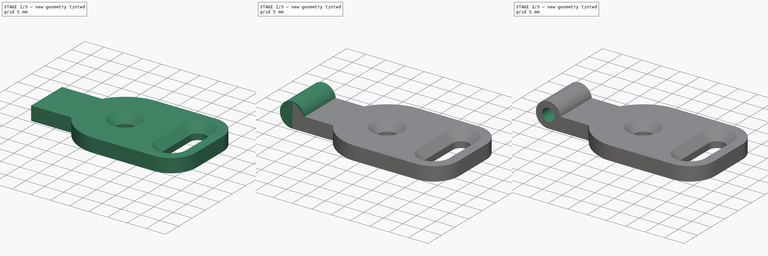
[diagram: build sequence overview — one tinted view per stage of 3, left to right]
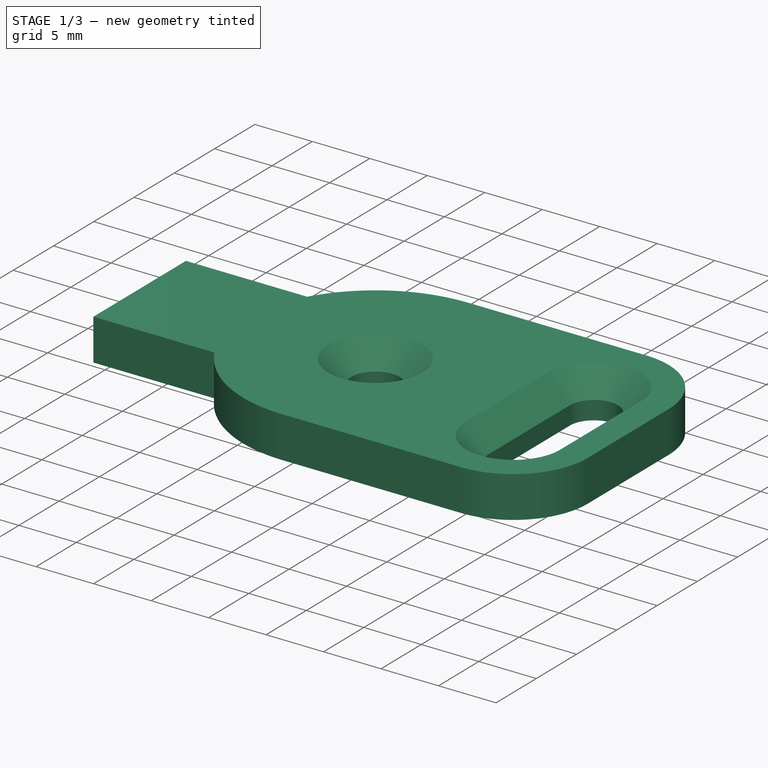
[diagram: stage 1 of 3 — iso view after this stage's code; geometry added in this stage tinted green]
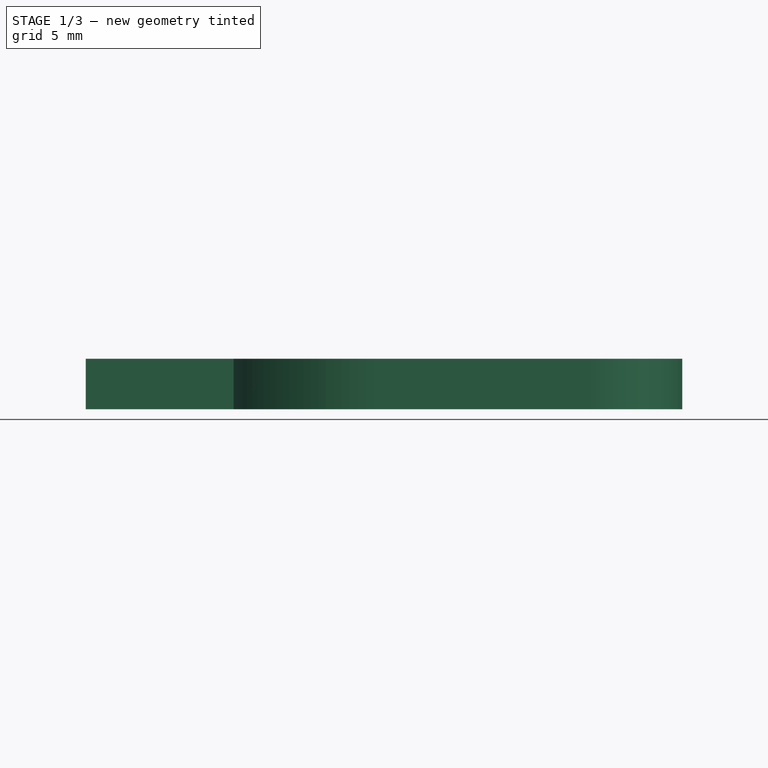
[diagram: stage 1 of 3 — front view after this stage's code; geometry added in this stage tinted green]
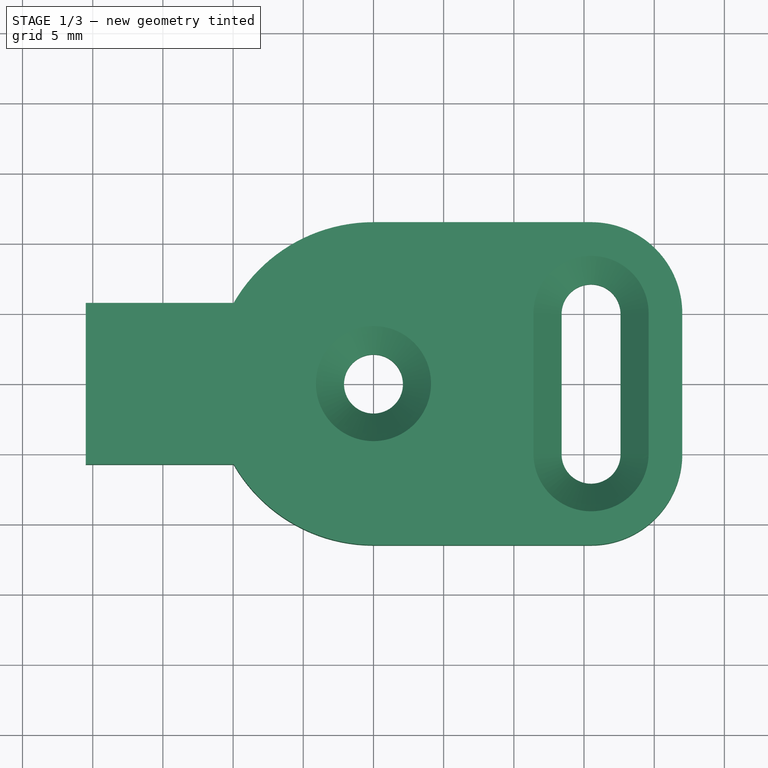
[diagram: stage 1 of 3 — top view after this stage's code; geometry added in this stage tinted green]
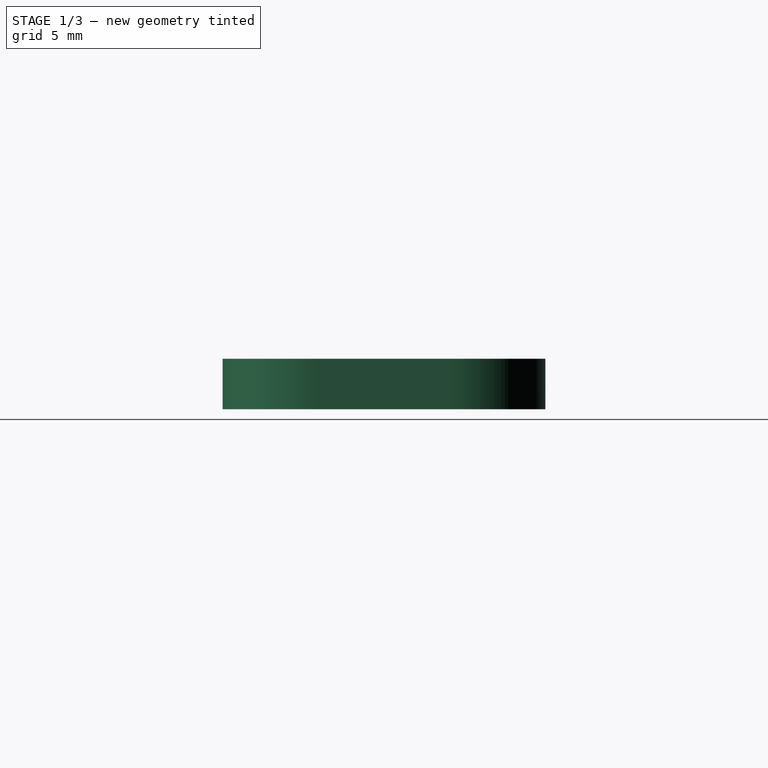
[diagram: stage 1 of 3 — right view after this stage's code; geometry added in this stage tinted green]
FCSTD DOCUMENT  (FreeCAD 0.20R29410 (Git))
Label: Zsaner
License: All rights reserved
LicenseURL: http://en.wikipedia.org/wiki/All_rights_reserved
objects: Sketcher::SketchObject×3, PartDesign::Pad×2, PartDesign::Chamfer×1, PartDesign::Pocket×1, PartDesign::Fillet×1, PartDesign::Body×1
note: 14 computed .brp shape members not serialized (recipe doc carries the construction recipe); baked Part::Feature solids carry a one-line shape summary decoded from their .brp

FEATURE [Sketcher::SketchObject] Sketch
  FullyConstrained = true
  MapMode = 5
  Support = -> [XY_Plane]
  sketch-geometry (18):
    g0: Circle CenterX=9.746e-13 CenterY=2.216e-13 CenterZ=0 NormalX=0 NormalY=0 NormalZ=1 AngleXU=0 Radius=2.1
    g1: ArcOfCircle CenterX=15.5 CenterY=5 CenterZ=0 NormalX=0 NormalY=0 NormalZ=1 AngleXU=0 Radius=2.1 StartAngle=-2.656e-13 EndAngle=3.14159
    g2: ArcOfCircle CenterX=15.5 CenterY=-5 CenterZ=0 NormalX=0 NormalY=0 NormalZ=1 AngleXU=0 Radius=2.1 StartAngle=3.14159 EndAngle=6.28319
    g3: LineSegment StartX=13.4 StartY=5 StartZ=0 EndX=13.4 EndY=-5 EndZ=0
    g4: LineSegment StartX=17.6 StartY=-5 StartZ=0 EndX=17.6 EndY=5 EndZ=0
    g5: LineSegment StartX=9.746e-13 StartY=2.216e-13 StartZ=0 EndX=15.5 EndY=2.216e-13 EndZ=0
    g6: LineSegment StartX=-20.5 StartY=5.75 StartZ=0 EndX=-20.5 EndY=-5.75 EndZ=0
    g7: LineSegment StartX=-20.5 StartY=-5.75 StartZ=0 EndX=-9.95929 EndY=-5.75 EndZ=0
    g8: LineSegment StartX=1.1155e-12 StartY=-11.5 StartZ=0 EndX=15.5 EndY=-11.5 EndZ=0
    g9: LineSegment StartX=22 StartY=-5 StartZ=0 EndX=22 EndY=5 EndZ=0
    g10: LineSegment StartX=15.5 StartY=11.5 StartZ=0 EndX=3.50948e-10 EndY=11.5 EndZ=0
    g11: LineSegment StartX=-9.95929 StartY=5.75 StartZ=0 EndX=-20.5 EndY=5.75 EndZ=0
    g12: LineSegment StartX=15.5 StartY=11.5 StartZ=0 EndX=15.5 EndY=-11.5 EndZ=0
    g13: ArcOfCircle CenterX=15.5 CenterY=5 CenterZ=0 NormalX=0 NormalY=0 NormalZ=1 AngleXU=0 Radius=6.5 StartAngle=-2.7e-15 EndAngle=1.5708
    g14: ArcOfCircle CenterX=15.5 CenterY=-5 CenterZ=0 NormalX=0 NormalY=0 NormalZ=1 AngleXU=0 Radius=6.5 StartAngle=4.71239 EndAngle=6.28319
    g15: LineSegment StartX=3.50948e-10 StartY=11.5 StartZ=0 EndX=1.1155e-12 EndY=-11.5 EndZ=0
    g16: ArcOfCircle CenterX=9.746e-13 CenterY=2.216e-13 CenterZ=0 NormalX=0 NormalY=0 NormalZ=1 AngleXU=0 Radius=11.5 StartAngle=1.5708 EndAngle=2.61799
    g17: ArcOfCircle CenterX=9.746e-13 CenterY=2.216e-13 CenterZ=0 NormalX=0 NormalY=0 NormalZ=1 AngleXU=0 Radius=11.5 StartAngle=3.66519 EndAngle=4.71239
  constraints (43):
    c: Radius(g0) = 2.1
    c: Tangent(g1,g3) = -1.5708
    c: Tangent(g3,g2) = -1.5708
    c: Tangent(g2,g4) = -1.5708
    c: Tangent(g4,g1) = -1.5708
    c: Equal(g1,g2)
    c: Vertical(g3)
    c: Equal(g1,g0)
    c: Horizontal(g5)
    c: Symmetric(g1,g2,g5)
    c: DistanceX(g5,g5) = 15.5
    c: Coincident(g6,g7)
    c: Horizontal(g7)
    c: Horizontal(g8)
    c: Vertical(g9)
    c: Coincident(g11,g6)
    c: Horizontal(g11)
    c: Coincident(g5,g0)
    c: Equal(g11,g7)
    c: Symmetric(g6,g6,g5)
    c: Coincident(g12,g8)
    c: Vertical(g12)
    c: PointOnObject(g5,g12)
    c: Coincident(g13,g1)
    c: Coincident(g13,g10)
    c: Coincident(g14,g2)
    c: Coincident(g14,g8)
    c: Tangent(g9,g14) = -1.5708
    c: Tangent(g9,g13) = -1.5708
    c: Coincident(g12,g10)
    c: DistanceY(g2,g1) = 10
    c: Coincident(g15,g10)
    c: Coincident(g8,g15)
    c: Coincident(g16,g0)
    c: Coincident(g16,g11)
    c: Coincident(g17,g0)
    c: Coincident(g17,g7)
    c: Tangent(g17,g8) = -1.5708
    c: Tangent(g16,g10) = -1.5708
    c: DistanceY(g8,g10) = 23
    c: DistanceY(g6,g6) = 11.5  'He'
    c: DistanceX(g6,g10) = 20.5
    c: Coincident(g0,g-1)  '__##__'
FEATURE [PartDesign::Pad] Pad
  Direction = (0,0,1)
  Length = 3.6
  Length2 = 10
  Profile = -> Sketch
  ReferenceAxis = -> Sketch [N_Axis]
  Type = 0
FEATURE [PartDesign::Chamfer] Chamfer
  Angle = 45
  Base = -> Pad [Edge45,Edge34]
  BaseFeature = -> Pad
  ChamferType = 0
  FlipDirection = false
  Size = 2
  Size2 = 1
  SupportTransform = false
  UseAllEdges = false
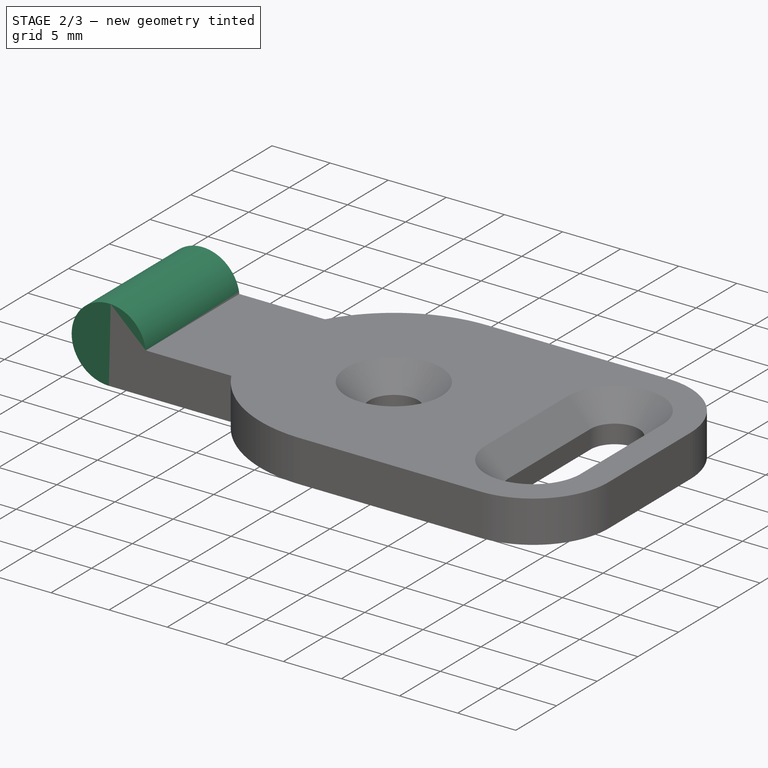
[diagram: stage 2 of 3 — iso view after this stage's code; geometry added in this stage tinted green]
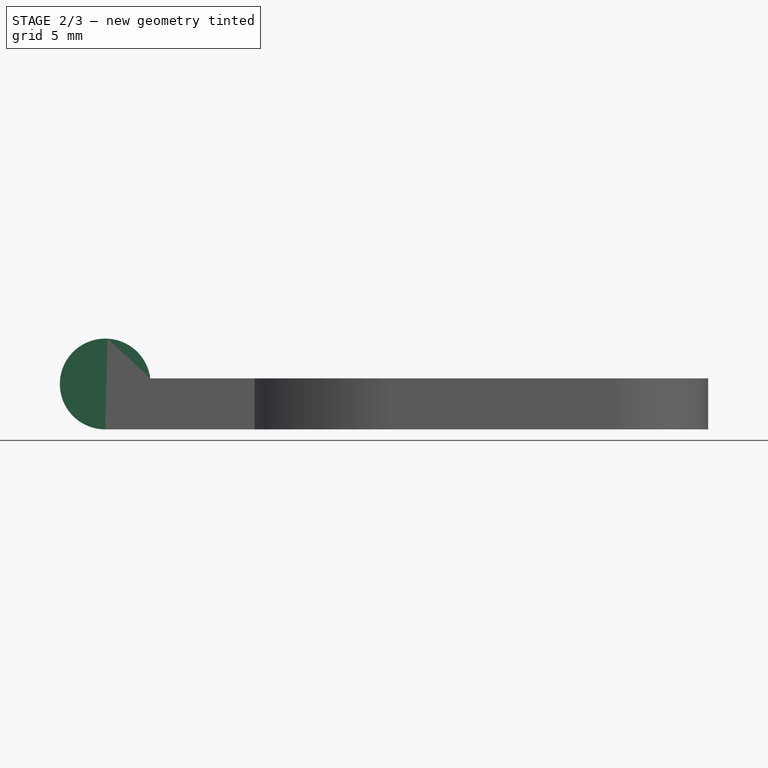
[diagram: stage 2 of 3 — front view after this stage's code; geometry added in this stage tinted green]
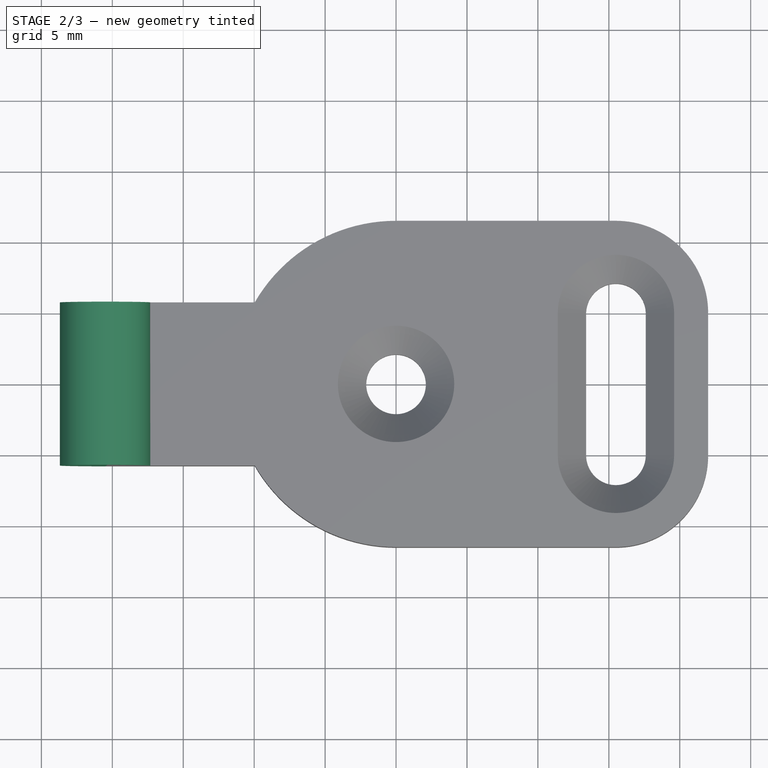
[diagram: stage 2 of 3 — top view after this stage's code; geometry added in this stage tinted green]
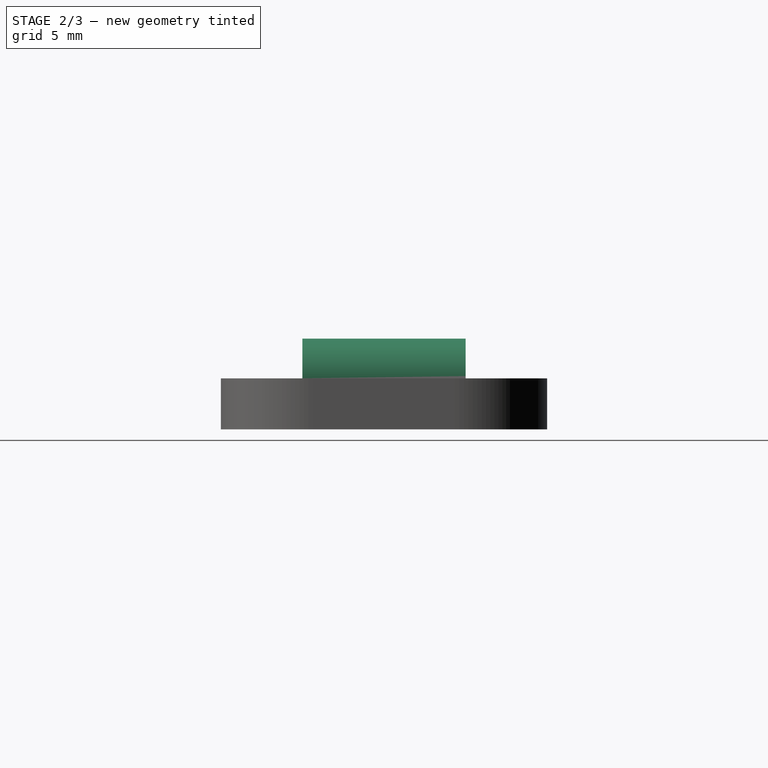
[diagram: stage 2 of 3 — right view after this stage's code; geometry added in this stage tinted green]
FEATURE [Sketcher::SketchObject] Sketch001
  ExternalGeometry = -> [Sketch]
  FullyConstrained = true
  MapMode = 5
  Placement = pos=(0,0,0) rot=(1,0,0;1.5708rad)
  Support = -> [XZ_Plane]
  sketch-geometry (2):
    g0: LineSegment StartX=-20.5 StartY=-2.43e-14 StartZ=0 EndX=-20.5 EndY=3.2 EndZ=0
    g1: Circle CenterX=-20.5 CenterY=3.2 CenterZ=0 NormalX=0 NormalY=0 NormalZ=1 AngleXU=0 Radius=3.2
  constraints (5):
    c: Coincident(g0,g-3)
    c: Vertical(g0)
    c: Coincident(g1,g0)
    c: PointOnObject(g0,g1)
    c: Radius(g1) = 3.2
FEATURE [PartDesign::Pad] Pad001
  BaseFeature = -> Chamfer
  Direction = (0,-1,2e-16)
  Length = 11.5
  Length2 = 10
  Midplane = true
  Profile = -> Sketch001
  ReferenceAxis = -> Sketch001 [N_Axis]
  Refine = true
  Type = 0
  expr: Length = <<Sketch>>.Constraints.He
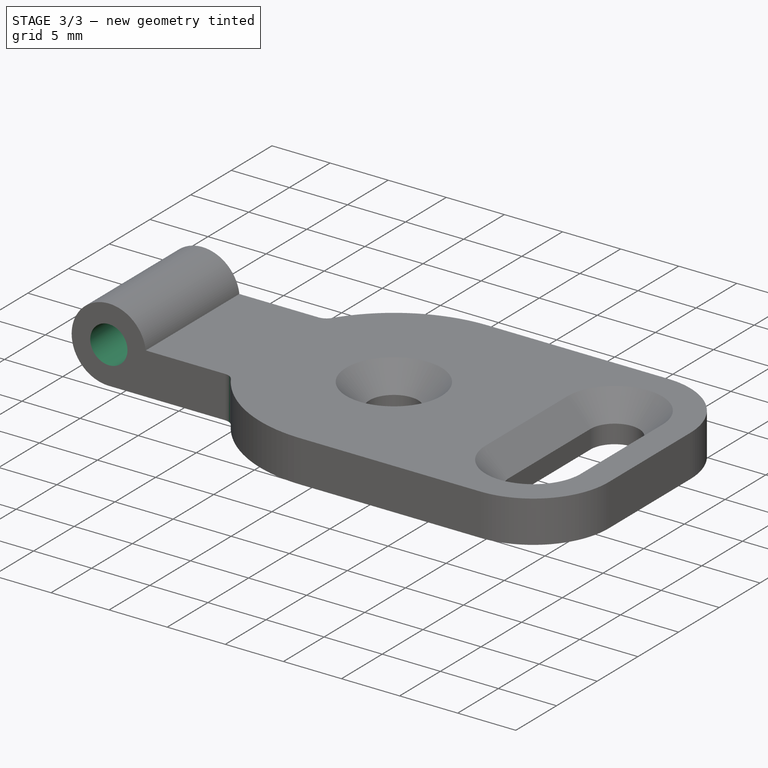
[diagram: stage 3 of 3 — iso view after this stage's code; geometry added in this stage tinted green]
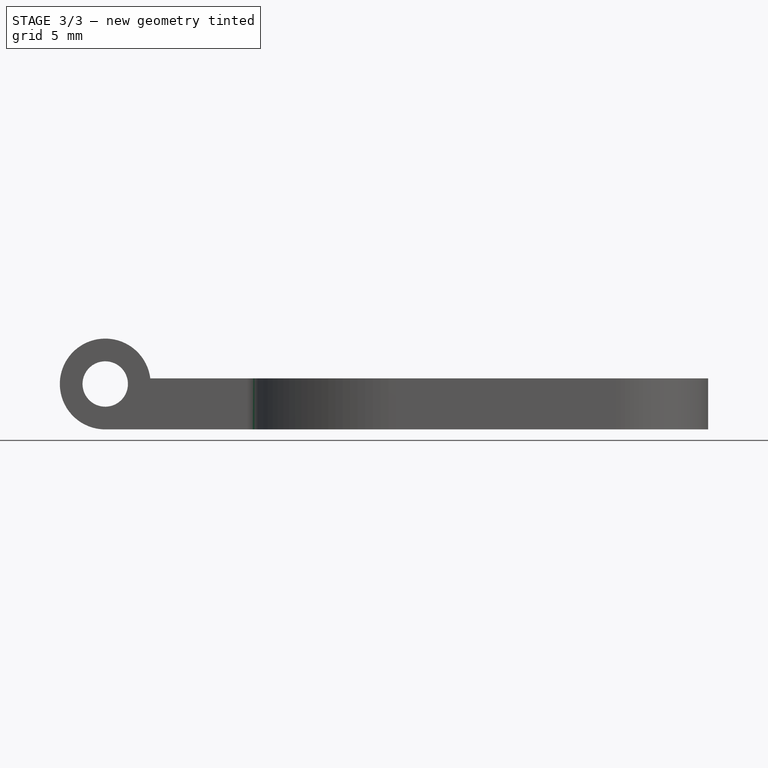
[diagram: stage 3 of 3 — front view after this stage's code; geometry added in this stage tinted green]
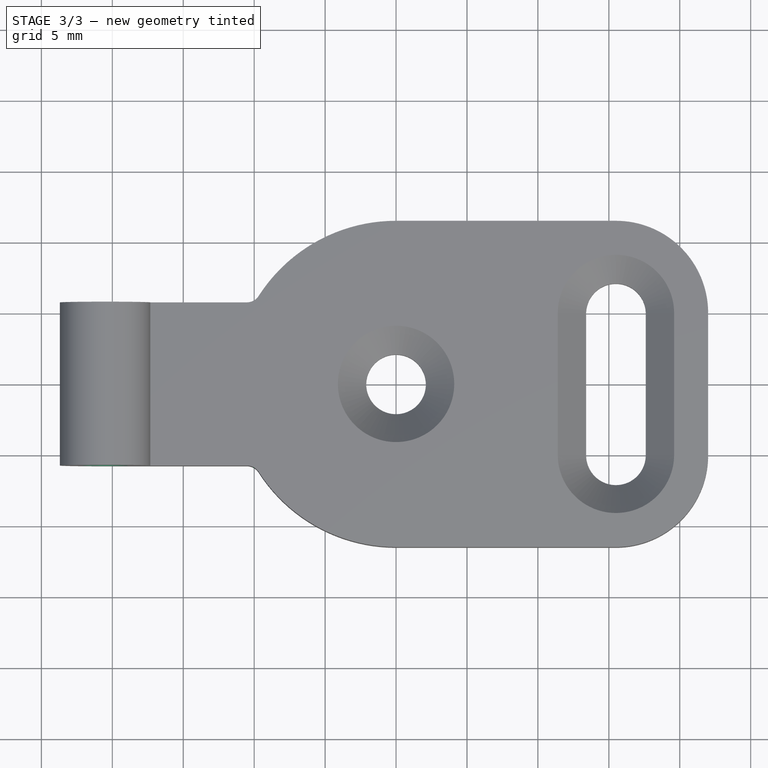
[diagram: stage 3 of 3 — top view after this stage's code; geometry added in this stage tinted green]
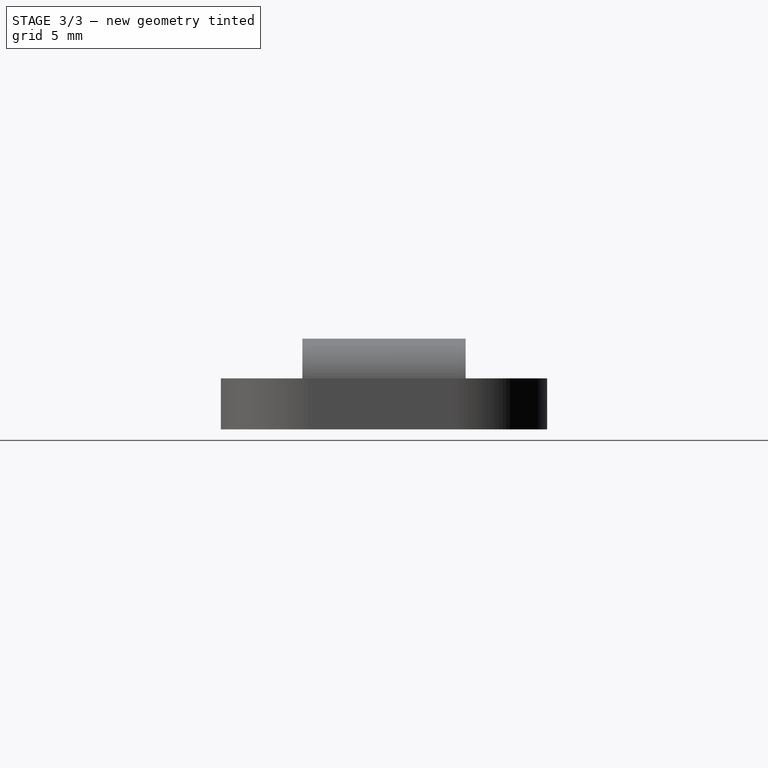
[diagram: stage 3 of 3 — right view after this stage's code; geometry added in this stage tinted green]
FEATURE [Sketcher::SketchObject] Sketch002
  ExternalGeometry = -> [Sketch001]
  FullyConstrained = true
  MapMode = 5
  Placement = pos=(0,0,0) rot=(1,0,0;1.5708rad)
  Support = -> [XZ_Plane]
  sketch-geometry (1):
    g0: Circle CenterX=-20.5 CenterY=3.2 CenterZ=0 NormalX=0 NormalY=0 NormalZ=1 AngleXU=0 Radius=1.6
  constraints (2):
    c: Coincident(g0,g-3)
    c: Radius(g0) = 1.6
FEATURE [PartDesign::Pocket] Pocket
  BaseFeature = -> Pad001
  Direction = (0,1,-2e-16)
  Length = 5
  Length2 = 5
  Midplane = true
  Profile = -> Sketch002
  ReferenceAxis = -> Sketch002 [N_Axis]
  Type = 1
FEATURE [PartDesign::Fillet] Fillet
  Base = -> Pocket [Edge45,Edge53]
  BaseFeature = -> Pocket
  Radius = 1
  SupportTransform = false
  UseAllEdges = false
FEATURE [PartDesign::Body] Body
  Group = -> [Sketch,Pad,Chamfer,Sketch001,Pad001,Sketch002,Pocket,Fillet]
  Origin = -> Origin
  Tip = -> Fillet
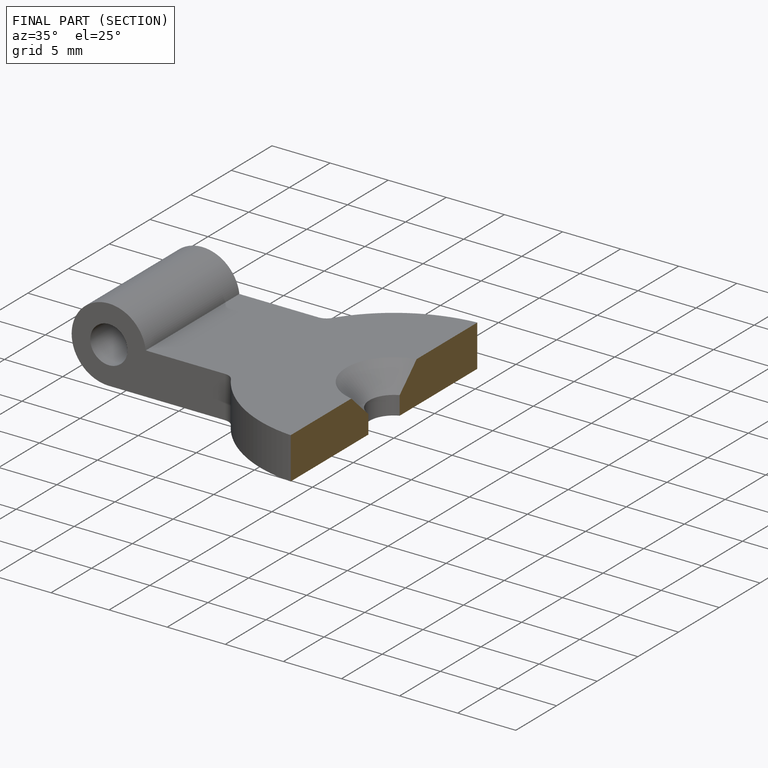
[diagram: finished part — half-section view (interior)]
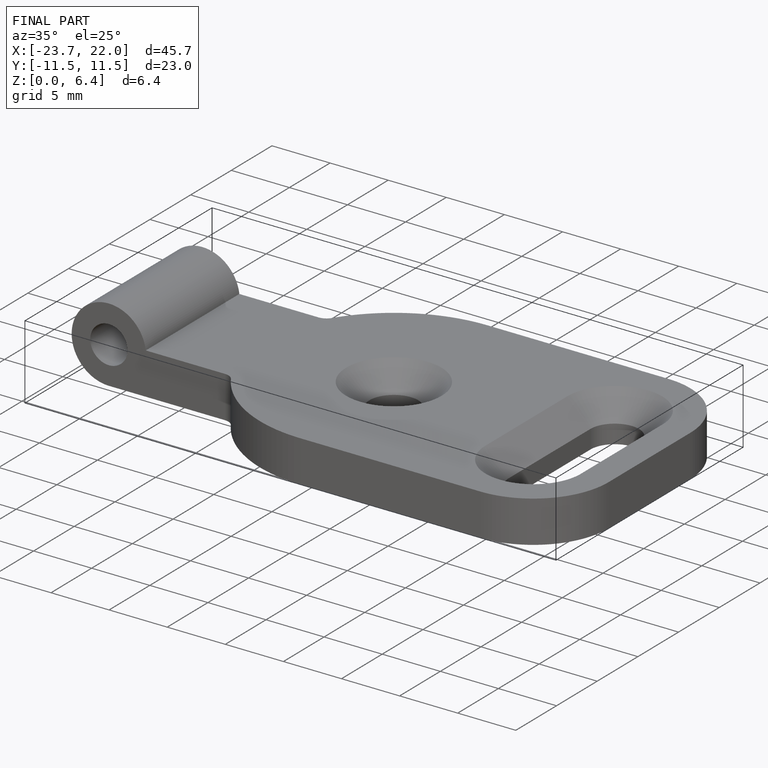
[diagram: finished part — iso view with bounding-box wireframe]
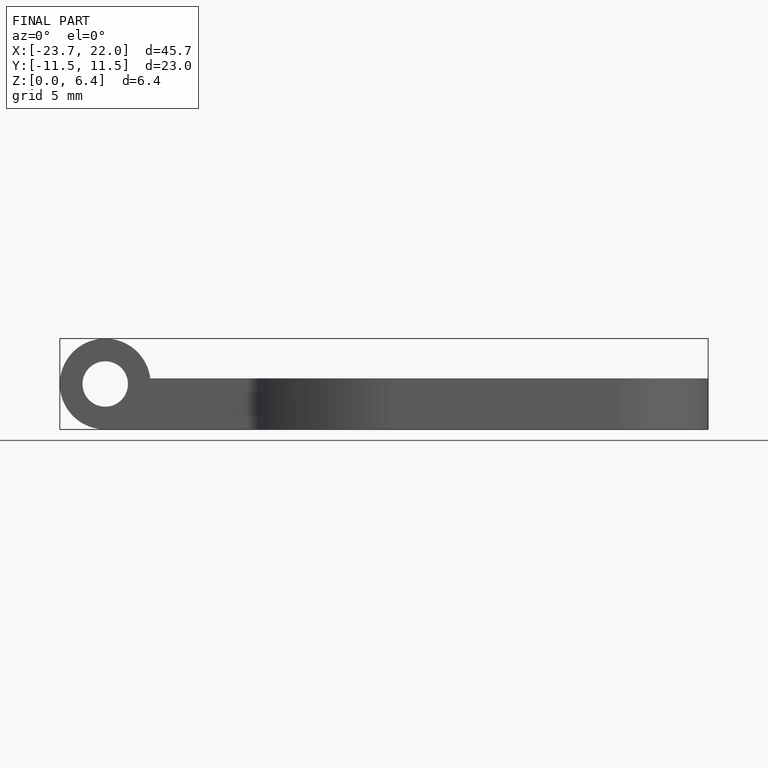
[diagram: finished part — front view with bounding-box wireframe]
